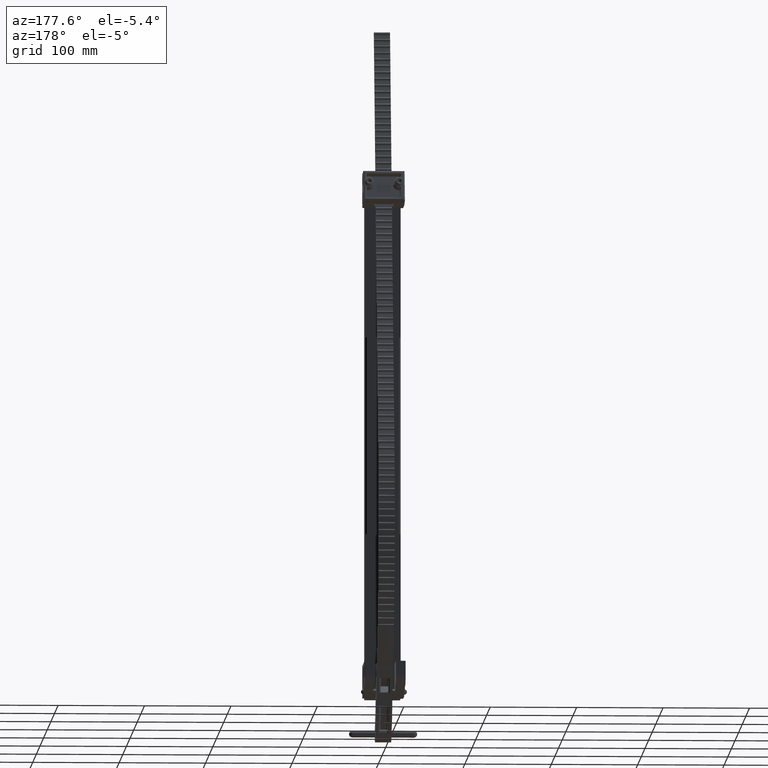
[diagram: clean part render]
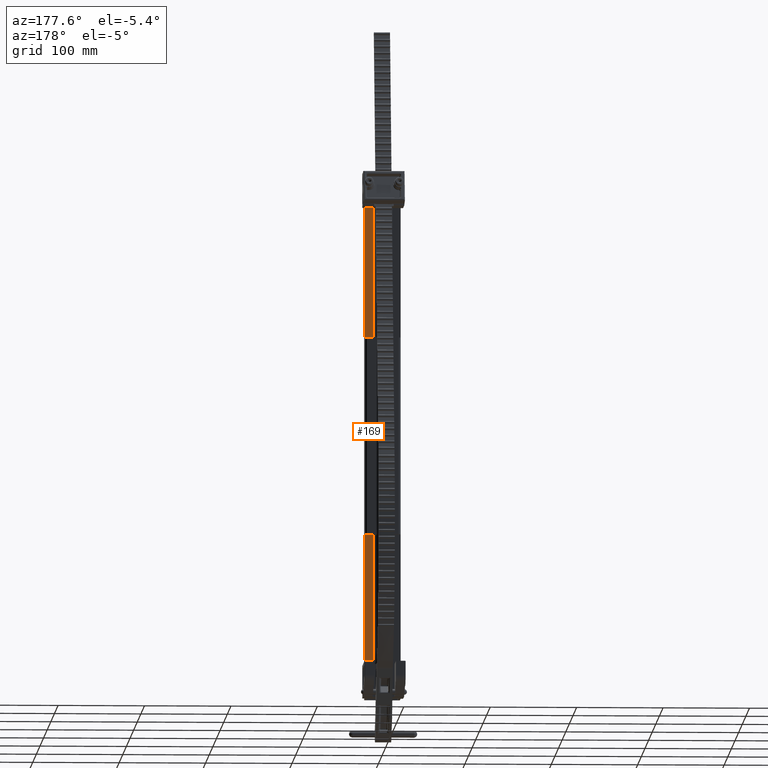
[diagram: same view with one face highlighted and labeled with its STEP entity id]
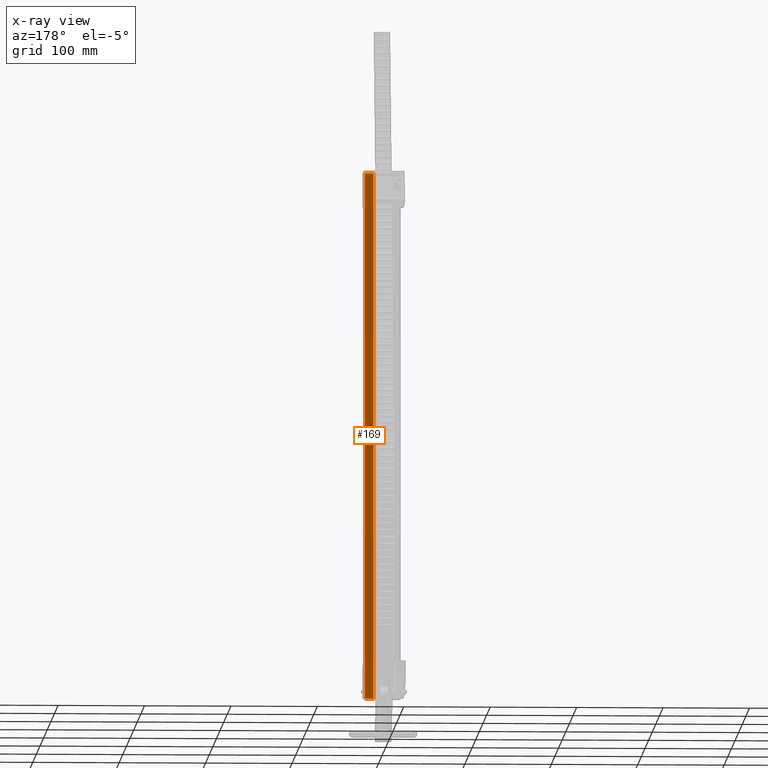
[diagram: x-ray of the same camera — body ghosted, the highlighted face saturated]
A machine part, auxiliary view. The second image highlights one B-rep face of the part: STEP entity #169.
The next image is the same camera in x-ray: the body ghosted, the highlighted face saturated — about 0% of this face is hidden behind the body in this view.
In plain terms, the highlighted planar face has unit normal (0, -1, 0).
Its self-contained STEP definition (entity closure, byte-faithful):
#169 = ADVANCED_FACE ( 'NONE', ( #11564 ), #18829, .F. ) ;
#8764 = AXIS2_PLACEMENT_3D ( 'NONE', #18828, #18834, #18835 ) ;
#9401 = ORIENTED_EDGE ( 'NONE', *, *, #39137, .T. ) ;
#9404 = ORIENTED_EDGE ( 'NONE', *, *, #39136, .F. ) ;
#9406 = ORIENTED_EDGE ( 'NONE', *, *, #39127, .F. ) ;
#9408 = ORIENTED_EDGE ( 'NONE', *, *, #39132, .T. ) ;
#11564 = FACE_OUTER_BOUND ( 'NONE', #43729, .T. ) ;
#18828 = CARTESIAN_POINT ( 'NONE',  ( 0.8125000000000000000, 0.8125000000000000000, 12.00000000000000200 ) ) ;
#18829 = PLANE ( 'NONE',  #8764 ) ;
#18834 = DIRECTION ( 'NONE',  ( 0.0000000000000000000, -1.000000000000000000, 0.0000000000000000000 ) ) ;
#18835 = DIRECTION ( 'NONE',  ( 0.0000000000000000000, -0.0000000000000000000, -1.000000000000000000 ) ) ;
#19456 = CARTESIAN_POINT ( 'NONE',  ( 0.8125000000000000000, 0.8125000000000000000, -12.00000000000000200 ) ) ;
#19457 = CARTESIAN_POINT ( 'NONE',  ( 0.8125000000000000000, 0.8125000000000000000, 12.00000000000000200 ) ) ;
#19459 = CARTESIAN_POINT ( 'NONE',  ( 0.4284999999999999900, 0.8125000000000000000, -12.00000000000000200 ) ) ;
#19460 = CARTESIAN_POINT ( 'NONE',  ( 0.4284999999999999900, 0.8125000000000000000, 12.00000000000000200 ) ) ;
#22065 = CARTESIAN_POINT ( 'NONE',  ( 0.8125000000000000000, 0.8125000000000000000, 12.00000000000000200 ) ) ;
#22071 = DIRECTION ( 'NONE',  ( -1.000000000000000000, 0.0000000000000000000, 0.0000000000000000000 ) ) ;
#22080 = CARTESIAN_POINT ( 'NONE',  ( 0.8125000000000000000, 0.8125000000000000000, 12.00000000000000200 ) ) ;
#22081 = DIRECTION ( 'NONE',  ( -0.0000000000000000000, -0.0000000000000000000, -1.000000000000000000 ) ) ;
#22084 = CARTESIAN_POINT ( 'NONE',  ( 0.8125000000000000000, 0.8125000000000000000, -12.00000000000000200 ) ) ;
#22088 = CARTESIAN_POINT ( 'NONE',  ( 0.4284999999999999900, 0.8125000000000000000, 12.00000000000000200 ) ) ;
#22089 = DIRECTION ( 'NONE',  ( -0.0000000000000000000, -0.0000000000000000000, -1.000000000000000000 ) ) ;
#22091 = DIRECTION ( 'NONE',  ( -1.000000000000000000, 0.0000000000000000000, 0.0000000000000000000 ) ) ;
#22617 = VECTOR ( 'NONE', #22071, 39.37007874015748100 ) ;
#22621 = LINE ( 'NONE', #22065, #22617 ) ;
#22629 = LINE ( 'NONE', #22084, #22640 ) ;
#22630 = LINE ( 'NONE', #22080, #22631 ) ;
#22631 = VECTOR ( 'NONE', #22081, 39.37007874015748100 ) ;
#22638 = LINE ( 'NONE', #22088, #22639 ) ;
#22639 = VECTOR ( 'NONE', #22089, 39.37007874015748100 ) ;
#22640 = VECTOR ( 'NONE', #22091, 39.37007874015748100 ) ;
#38006 = VERTEX_POINT ( 'NONE', #19456 ) ;
#38007 = VERTEX_POINT ( 'NONE', #19457 ) ;
#38009 = VERTEX_POINT ( 'NONE', #19459 ) ;
#38010 = VERTEX_POINT ( 'NONE', #19460 ) ;
#39127 = EDGE_CURVE ( 'NONE', #38007, #38010, #22621, .T. ) ;
#39132 = EDGE_CURVE ( 'NONE', #38007, #38006, #22630, .T. ) ;
#39136 = EDGE_CURVE ( 'NONE', #38010, #38009, #22638, .T. ) ;
#39137 = EDGE_CURVE ( 'NONE', #38006, #38009, #22629, .T. ) ;
#43729 = EDGE_LOOP ( 'NONE', ( #9401, #9404, #9406, #9408 ) ) ;